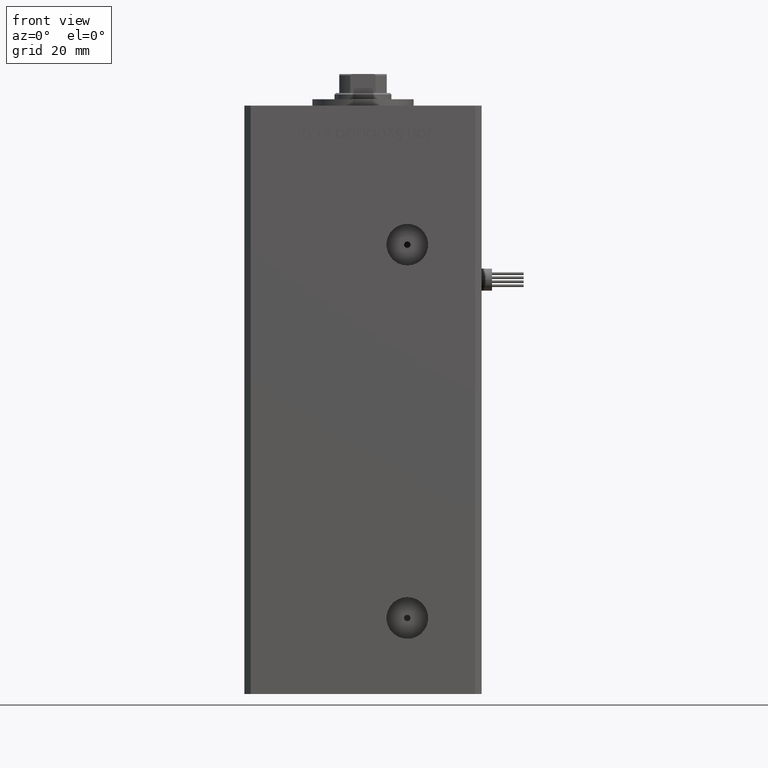
[diagram: clean part render]
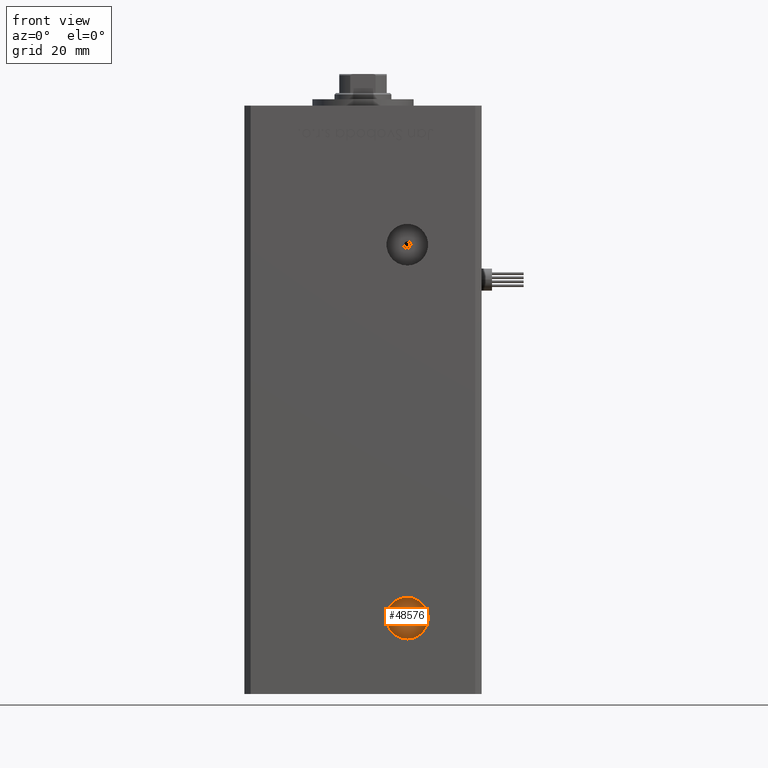
[diagram: same view with one face highlighted and labeled with its STEP entity id]
A machine part, front view. The second image highlights one B-rep face of the part: STEP entity #48576.
In plain terms, the highlighted planar face has unit normal (0, -1, 0).
Its self-contained STEP definition (entity closure, byte-faithful):
#177 = PLANE ( 'NONE',  #31094 ) ;
#640 = AXIS2_PLACEMENT_3D ( 'NONE', #42608, #52066, #46785 ) ;
#1750 = DIRECTION ( 'NONE',  ( 0.000000000000000000, -1.000000000000000000, 0.000000000000000000 ) ) ;
#2290 = CIRCLE ( 'NONE', #22761, 1.000000000000000888 ) ;
#4041 = DIRECTION ( 'NONE',  ( 0.000000000000000000, 0.000000000000000000, -1.000000000000000000 ) ) ;
#5685 = VERTEX_POINT ( 'NONE', #48175 ) ;
#7409 = EDGE_LOOP ( 'NONE', ( #41530, #11052 ) ) ;
#7962 = CIRCLE ( 'NONE', #53386, 1.000000000000000888 ) ;
#8743 = CARTESIAN_POINT ( 'NONE',  ( 13.99999999999999112, -19.50000000000000355, 2.420000000000009699 ) ) ;
#9366 = CARTESIAN_POINT ( 'NONE',  ( 13.99999999999999112, -19.50000000000000355, 10.00000000000000888 ) ) ;
#11052 = ORIENTED_EDGE ( 'NONE', *, *, #43093, .T. ) ;
#11453 = ORIENTED_EDGE ( 'NONE', *, *, #53994, .F. ) ;
#14769 = AXIS2_PLACEMENT_3D ( 'NONE', #25797, #51170, #4041 ) ;
#18135 = EDGE_LOOP ( 'NONE', ( #11453, #18199 ) ) ;
#18199 = ORIENTED_EDGE ( 'NONE', *, *, #49157, .F. ) ;
#20228 = CARTESIAN_POINT ( 'NONE',  ( 13.99999999999999112, -19.50000000000000355, 15.58000000000000718 ) ) ;
#22127 = CARTESIAN_POINT ( 'NONE',  ( 13.99999999999999112, -19.50000000000000355, 9.000000000000007105 ) ) ;
#22761 = AXIS2_PLACEMENT_3D ( 'NONE', #35943, #35409, #31774 ) ;
#23682 = CIRCLE ( 'NONE', #14769, 6.579999999999998295 ) ;
#25749 = VERTEX_POINT ( 'NONE', #9366 ) ;
#25797 = CARTESIAN_POINT ( 'NONE',  ( 13.99999999999999112, -19.50000000000000355, 9.000000000000007105 ) ) ;
#31094 = AXIS2_PLACEMENT_3D ( 'NONE', #33676, #34205, #38960 ) ;
#31774 = DIRECTION ( 'NONE',  ( 0.000000000000000000, 0.000000000000000000, -1.000000000000000000 ) ) ;
#32735 = CIRCLE ( 'NONE', #640, 6.579999999999998295 ) ;
#33676 = CARTESIAN_POINT ( 'NONE',  ( 13.99999999999999112, -19.50000000000000355, 9.000000000000007105 ) ) ;
#33774 = VERTEX_POINT ( 'NONE', #8743 ) ;
#34205 = DIRECTION ( 'NONE',  ( 0.000000000000000000, -1.000000000000000000, 0.000000000000000000 ) ) ;
#35409 = DIRECTION ( 'NONE',  ( 0.000000000000000000, -1.000000000000000000, 0.000000000000000000 ) ) ;
#35943 = CARTESIAN_POINT ( 'NONE',  ( 13.99999999999999112, -19.50000000000000355, 9.000000000000007105 ) ) ;
#35988 = EDGE_CURVE ( 'NONE', #33774, #54613, #23682, .T. ) ;
#38960 = DIRECTION ( 'NONE',  ( 0.000000000000000000, -0.000000000000000000, -1.000000000000000000 ) ) ;
#41530 = ORIENTED_EDGE ( 'NONE', *, *, #35988, .T. ) ;
#42588 = FACE_BOUND ( 'NONE', #18135, .T. ) ;
#42608 = CARTESIAN_POINT ( 'NONE',  ( 13.99999999999999112, -19.50000000000000355, 9.000000000000007105 ) ) ;
#43093 = EDGE_CURVE ( 'NONE', #54613, #33774, #32735, .T. ) ;
#44135 = DIRECTION ( 'NONE',  ( 0.000000000000000000, 0.000000000000000000, -1.000000000000000000 ) ) ;
#46486 = FACE_OUTER_BOUND ( 'NONE', #7409, .T. ) ;
#46785 = DIRECTION ( 'NONE',  ( 0.000000000000000000, 0.000000000000000000, -1.000000000000000000 ) ) ;
#48175 = CARTESIAN_POINT ( 'NONE',  ( 13.99999999999999112, -19.50000000000000355, 8.000000000000007105 ) ) ;
#48576 = ADVANCED_FACE ( 'NONE', ( #42588, #46486 ), #177, .T. ) ;
#49157 = EDGE_CURVE ( 'NONE', #25749, #5685, #7962, .T. ) ;
#51170 = DIRECTION ( 'NONE',  ( 0.000000000000000000, -1.000000000000000000, 0.000000000000000000 ) ) ;
#52066 = DIRECTION ( 'NONE',  ( 0.000000000000000000, -1.000000000000000000, 0.000000000000000000 ) ) ;
#53386 = AXIS2_PLACEMENT_3D ( 'NONE', #22127, #1750, #44135 ) ;
#53994 = EDGE_CURVE ( 'NONE', #5685, #25749, #2290, .T. ) ;
#54613 = VERTEX_POINT ( 'NONE', #20228 ) ;